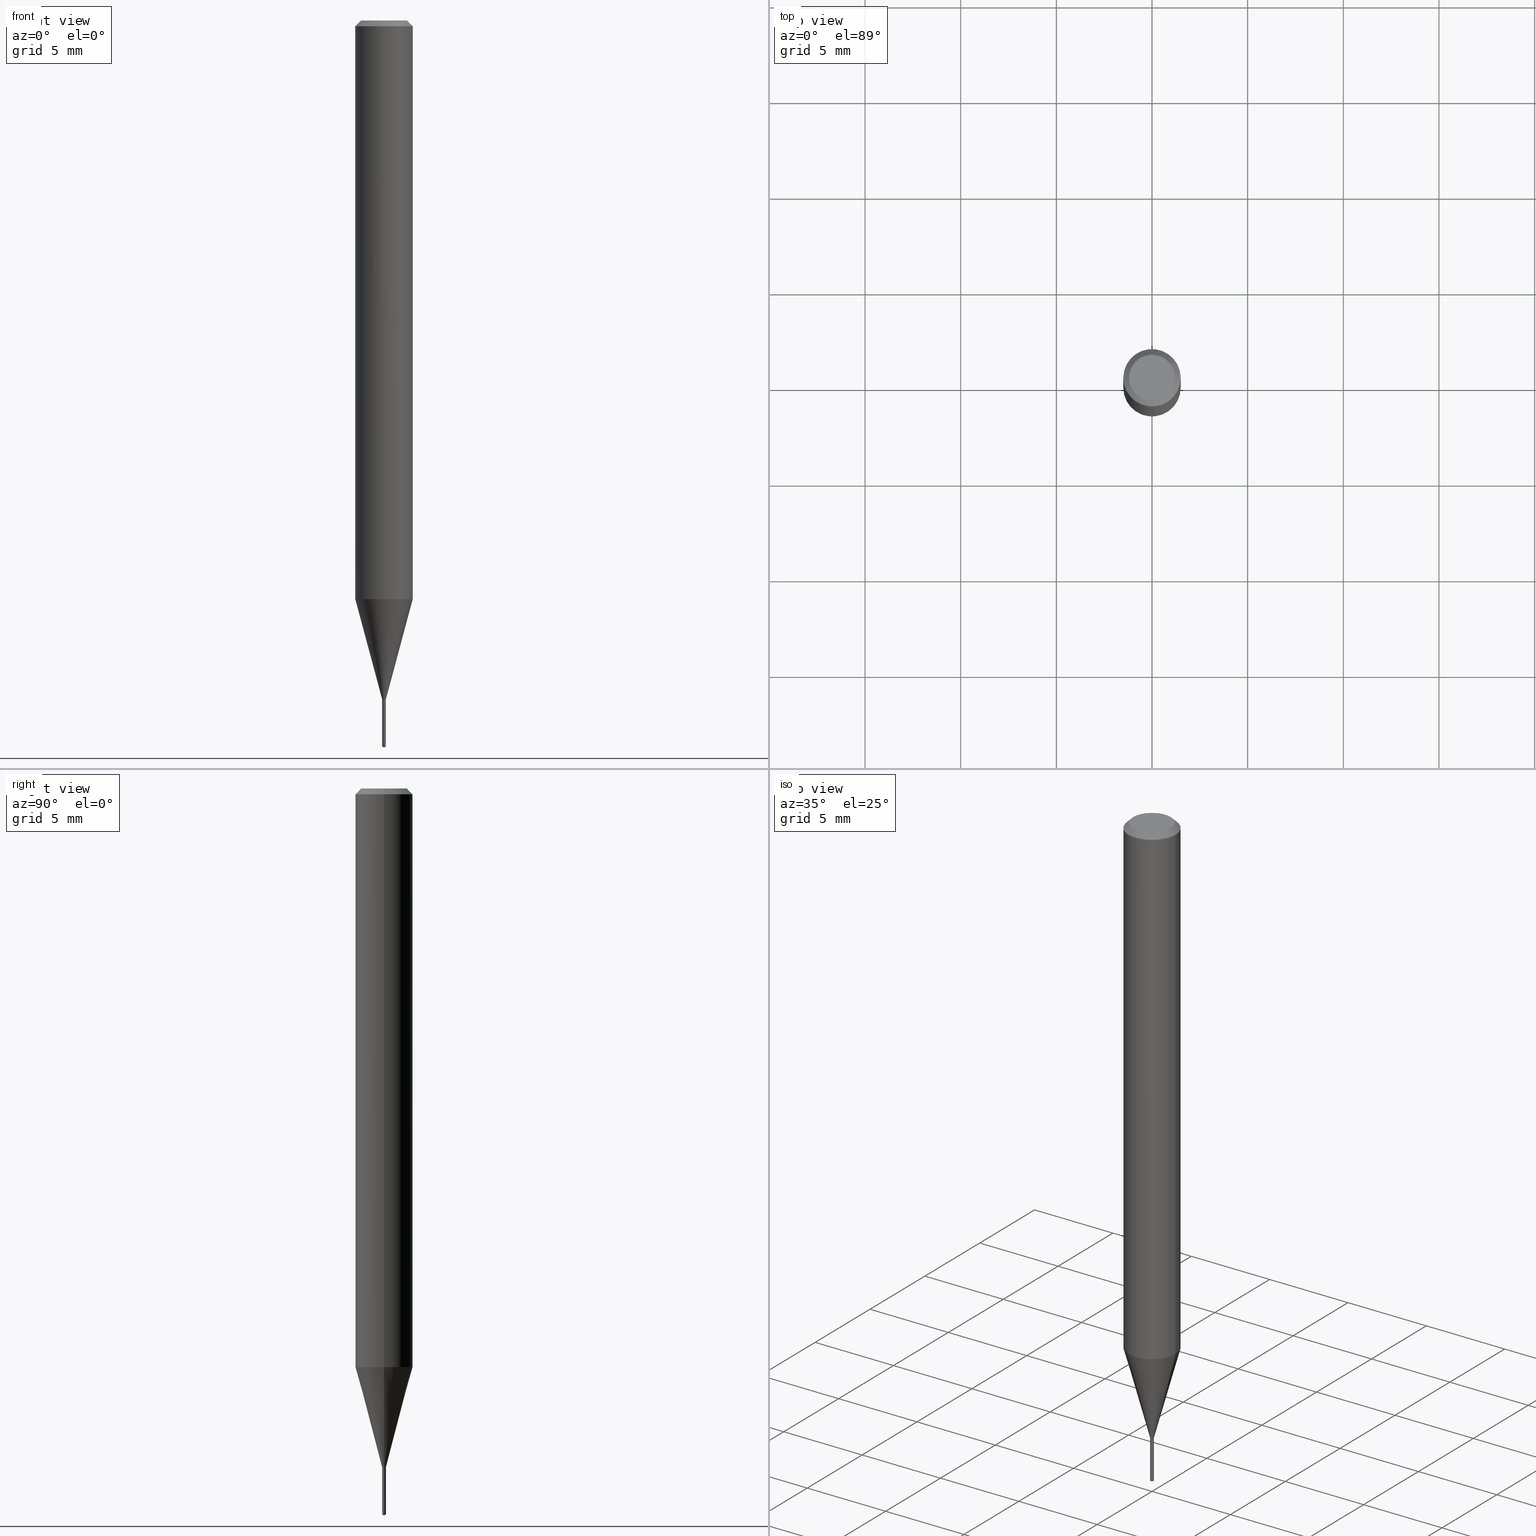
[diagram: canonical four-view strip — front | top / right | iso, engineering-drawing reading convention]
A machine part, canonical four-view strip (front | top / right | iso — engineering-drawing reading convention). The complete STEP part file that produces these views, byte-faithful:
ISO-10303-21;
HEADER;
FILE_DESCRIPTION (( 'STEP AP203' ),
    '1' );
FILE_NAME ('07739.STEP',
    '2024-04-24T02:01:28',
    ( '' ),
    ( '' ),
    'SwSTEP 2.0',
    'SolidWorks 2023',
    '' );
FILE_SCHEMA (( 'CONFIG_CONTROL_DESIGN' ));
ENDSEC;

DATA;
#1 = DIRECTION ( 'NONE',  ( -6.982962677686266711E-15, -1.000000000000000000, 0.000000000000000000 ) ) ;
#2 = CIRCLE ( 'NONE', #10, 0.05905000000000014404 ) ;
#3 = AXIS2_PLACEMENT_3D ( 'NONE', #90, #214, #63 ) ;
#4 = CC_DESIGN_DATE_AND_TIME_ASSIGNMENT ( #391, #46, ( #309 ) ) ;
#5 = CARTESIAN_POINT ( 'NONE',  ( -0.003950000000000000386, -4.847787251631928717E-15, -1.396500000000000075 ) ) ;
#6 = CALENDAR_DATE ( 2024, 23, 4 ) ;
#7 = CARTESIAN_POINT ( 'NONE',  ( 2.806643806256047571E-17, 0.003949999999994784072, -1.493726600554841077 ) ) ;
#8 = DIRECTION ( 'NONE',  ( 1.000000000000000000, -6.982962677686266711E-15, 0.000000000000000000 ) ) ;
#9 = EDGE_CURVE ( 'NONE', #184, #64, #351, .T. ) ;
#10 = AXIS2_PLACEMENT_3D ( 'NONE', #484, #146, #452 ) ;
#11 = CIRCLE ( 'NONE', #106, 0.003450000000000000809 ) ;
#12 = CARTESIAN_POINT ( 'NONE',  ( 0.000000000000000000, 0.000000000000000000, 0.000000000000000000 ) ) ;
#13 = DIRECTION ( 'NONE',  ( -2.445468806185136597E-29, 3.491481338843145583E-15, 1.000000000000000000 ) ) ;
#14 = ORIENTED_EDGE ( 'NONE', *, *, #101, .T. ) ;
#15 = CARTESIAN_POINT ( 'NONE',  ( 3.658605389342659504E-29, -5.223691858444399374E-15, -1.496099999999999985 ) ) ;
#16 = ORIENTED_EDGE ( 'NONE', *, *, #376, .T. ) ;
#17 = ADVANCED_FACE ( 'NONE', ( #224 ), #454, .F. ) ;
#18 = PLANE ( 'NONE',  #137 ) ;
#19 = VECTOR ( 'NONE', #59, 39.37007874015748143 ) ;
#20 = ORIENTED_EDGE ( 'NONE', *, *, #486, .T. ) ;
#21 = FACE_OUTER_BOUND ( 'NONE', #407, .T. ) ;
#22 = ORIENTED_EDGE ( 'NONE', *, *, #396, .T. ) ;
#23 = DIRECTION ( 'NONE',  ( 0.7071067811865453523, -7.319954787623248157E-15, -0.7071067811865496822 ) ) ;
#24 = EDGE_LOOP ( 'NONE', ( #209, #292, #150, #435 ) ) ;
#25 = DIRECTION ( 'NONE',  ( -6.982962677686266711E-15, -1.000000000000000000, 0.000000000000000000 ) ) ;
#26 = CONICAL_SURFACE ( 'NONE', #374, 65.52281426577083323, 1.029744258676670743 ) ;
#27 = ORIENTED_EDGE ( 'NONE', *, *, #131, .F. ) ;
#28 = CONICAL_SURFACE ( 'NONE', #45, 0.05904999999999999832, 0.7853981633974452814 ) ;
#29 = CARTESIAN_POINT ( 'NONE',  ( 0.000000000000000000, 0.000000000000000000, 0.000000000000000000 ) ) ;
#30 = LINE ( 'NONE', #411, #299 ) ;
#31 = PERSON_AND_ORGANIZATION ( #430, #147 ) ;
#32 = ORIENTED_EDGE ( 'NONE', *, *, #181, .T. ) ;
#33 = ADVANCED_FACE ( 'NONE', ( #385 ), #265, .T. ) ;
#34 = PRODUCT_DEFINITION ( 'UNKNOWN', '', #413, #71 ) ;
#35 = EDGE_LOOP ( 'NONE', ( #471, #217, #479, #213 ) ) ;
#36 = CONICAL_SURFACE ( 'NONE', #420, 0.003450000000000000809, 0.7853981633972759724 ) ;
#37 =( GEOMETRIC_REPRESENTATION_CONTEXT ( 3 ) GLOBAL_UNCERTAINTY_ASSIGNED_CONTEXT ( ( #329 ) ) GLOBAL_UNIT_ASSIGNED_CONTEXT ( ( #375, #296, #183 ) ) REPRESENTATION_CONTEXT ( 'NONE', 'WORKASPACE' ) );
#38 = CALENDAR_DATE ( 2024, 23, 4 ) ;
#39 = CARTESIAN_POINT ( 'NONE',  ( 3.418031750404965246E-29, -4.880043467301064347E-15, -1.397699999999999942 ) ) ;
#40 = EDGE_CURVE ( 'NONE', #371, #62, #144, .T. ) ;
#41 = PERSON_AND_ORGANIZATION_ROLE ( 'design_supplier' ) ;
#42 = LINE ( 'NONE', #148, #160 ) ;
#43 = APPLICATION_CONTEXT ( 'configuration controlled 3d designs of mechanical parts and assemblies' ) ;
#44 = DIRECTION ( 'NONE',  ( 1.000000000000000000, -6.982962677686266711E-15, 4.876185090822587894E-29 ) ) ;
#45 = AXIS2_PLACEMENT_3D ( 'NONE', #123, #399, #439 ) ;
#46 = DATE_TIME_ROLE ( 'classification_date' ) ;
#47 = DIRECTION ( 'NONE',  ( -2.445468806185136597E-29, 3.491481338843145583E-15, 1.000000000000000000 ) ) ;
#48 = ORIENTED_EDGE ( 'NONE', *, *, #438, .F. ) ;
#49 = DIRECTION ( 'NONE',  ( -6.982962677686266711E-15, -1.000000000000000000, 0.000000000000000000 ) ) ;
#50 = CARTESIAN_POINT ( 'NONE',  ( 3.418031750404965806E-29, -4.880043467301065136E-15, -1.397700000000000164 ) ) ;
#51 = VECTOR ( 'NONE', #221, 39.37007874015748143 ) ;
#52 = LOCAL_TIME ( 22, 1, 28.00000000000000000, #264 ) ;
#53 = CYLINDRICAL_SURFACE ( 'NONE', #153, 0.05905000000000006771 ) ;
#54 = EDGE_CURVE ( 'NONE', #336, #473, #30, .T. ) ;
#55 = CARTESIAN_POINT ( 'NONE',  ( 3.652857923996434429E-29, -5.215324111317117429E-15, -1.493726600554841077 ) ) ;
#56 = ORIENTED_EDGE ( 'NONE', *, *, #219, .T. ) ;
#57 = CARTESIAN_POINT ( 'NONE',  ( 3.418031750404965246E-29, -4.880043467301064347E-15, -1.397699999999999942 ) ) ;
#58 = EDGE_LOOP ( 'NONE', ( #443, #177 ) ) ;
#59 = DIRECTION ( 'NONE',  ( -0.7071067811865453523, 2.468850131082234184E-15, -0.7071067811865496822 ) ) ;
#60 = AXIS2_PLACEMENT_3D ( 'NONE', #12, #13, #353 ) ;
#61 = LOCAL_TIME ( 22, 1, 28.00000000000000000, #151 ) ;
#62 = VERTEX_POINT ( 'NONE', #270 ) ;
#63 = DIRECTION ( 'NONE',  ( 1.000000000000000000, -6.982962677686246200E-15, 0.000000000000000000 ) ) ;
#64 = VERTEX_POINT ( 'NONE', #76 ) ;
#65 = CARTESIAN_POINT ( 'NONE',  ( 0.000000000000000000, 0.000000000000000000, 0.000000000000000000 ) ) ;
#66 = ORIENTED_EDGE ( 'NONE', *, *, #271, .T. ) ;
#67 = DATE_AND_TIME ( #410, #277 ) ;
#68 = CIRCLE ( 'NONE', #83, 0.04724000000000000421 ) ;
#69 = VERTEX_POINT ( 'NONE', #350 ) ;
#70 = VECTOR ( 'NONE', #335, 39.37007874015748143 ) ;
#71 = DESIGN_CONTEXT ( 'detailed design', #167, 'design' ) ;
#72 = CARTESIAN_POINT ( 'NONE',  ( -0.003950000000000000386, 2.806643806252396008E-17, -1.942979360650688056E-31 ) ) ;
#73 = DIRECTION ( 'NONE',  ( -6.982962677686266711E-15, -1.000000000000000000, 0.000000000000000000 ) ) ;
#74 = ORIENTED_EDGE ( 'NONE', *, *, #486, .F. ) ;
#75 = APPROVAL_DATE_TIME ( #487, #320 ) ;
#76 = CARTESIAN_POINT ( 'NONE',  ( -0.003950000000000000386, -4.849009270100523375E-15, -1.396500000000000075 ) ) ;
#77 = AXIS2_PLACEMENT_3D ( 'NONE', #370, #206, #99 ) ;
#78 = APPROVAL_ROLE ( '' ) ;
#79 = CARTESIAN_POINT ( 'NONE',  ( 3.416809016001873005E-29, -4.878297726631642843E-15, -1.397199999999999998 ) ) ;
#80 = EDGE_CURVE ( 'NONE', #184, #336, #96, .T. ) ;
#81 = CARTESIAN_POINT ( 'NONE',  ( 0.003450000000000000809, -4.904134688539083463E-15, -1.397700000000000164 ) ) ;
#82 = DIRECTION ( 'NONE',  ( -2.445468806185136597E-29, 3.491481338843145583E-15, 1.000000000000000000 ) ) ;
#83 = AXIS2_PLACEMENT_3D ( 'NONE', #238, #82, #44 ) ;
#84 = AXIS2_PLACEMENT_3D ( 'NONE', #91, #284, #365 ) ;
#85 = DIRECTION ( 'NONE',  ( -2.445468806185136597E-29, 3.491481338843145583E-15, 1.000000000000000000 ) ) ;
#86 = EDGE_CURVE ( 'NONE', #175, #336, #42, .T. ) ;
#87 = DIRECTION ( 'NONE',  ( -1.000000000000000000, 6.982962677686265922E-15, -4.876176775795935793E-29 ) ) ;
#88 = DIRECTION ( 'NONE',  ( 1.000000000000000000, -6.982962677686266711E-15, 4.876176775795936353E-29 ) ) ;
#89 = LOCAL_TIME ( 22, 1, 28.00000000000000000, #200 ) ;
#90 = CARTESIAN_POINT ( 'NONE',  ( 3.415097187837543195E-29, -4.875853689694452738E-15, -1.396500000000000075 ) ) ;
#91 = CARTESIAN_POINT ( 'NONE',  ( -9.261804570917240977E-28, 1.322385639134920803E-13, 37.87397874015748300 ) ) ;
#92 = ORIENTED_EDGE ( 'NONE', *, *, #225, .F. ) ;
#93 = CARTESIAN_POINT ( 'NONE',  ( 3.658605389342659504E-29, -5.223691858444398585E-15, -1.496099999999999985 ) ) ;
#94 = ORIENTED_EDGE ( 'NONE', *, *, #334, .T. ) ;
#95 = DIRECTION ( 'NONE',  ( -2.445468806185136597E-29, 3.491481338843145583E-15, 1.000000000000000000 ) ) ;
#96 = CIRCLE ( 'NONE', #276, 0.003950000000000000386 ) ;
#97 = CIRCLE ( 'NONE', #220, 0.003950000000000000386 ) ;
#98 = ORIENTED_EDGE ( 'NONE', *, *, #181, .F. ) ;
#99 = DIRECTION ( 'NONE',  ( 1.000000000000000000, -6.982962677686272233E-15, 0.000000000000000000 ) ) ;
#100 = VERTEX_POINT ( 'NONE', #418 ) ;
#101 = EDGE_CURVE ( 'NONE', #469, #62, #227, .T. ) ;
#102 = DIRECTION ( 'NONE',  ( 0.000000000000000000, 0.000000000000000000, 1.000000000000000000 ) ) ;
#103 = DIRECTION ( 'NONE',  ( -6.982962677686266711E-15, -1.000000000000000000, 0.000000000000000000 ) ) ;
#104 = CARTESIAN_POINT ( 'NONE',  ( 3.418031750404965246E-29, -4.880043467301064347E-15, -1.397699999999999942 ) ) ;
#105 = FACE_OUTER_BOUND ( 'NONE', #129, .T. ) ;
#106 = AXIS2_PLACEMENT_3D ( 'NONE', #483, #481, #139 ) ;
#107 = CC_DESIGN_PERSON_AND_ORGANIZATION_ASSIGNMENT ( #235, #461, ( #309 ) ) ;
#108 = PERSON_AND_ORGANIZATION ( #430, #147 ) ;
#109 = ORIENTED_EDGE ( 'NONE', *, *, #54, .T. ) ;
#110 = EDGE_LOOP ( 'NONE', ( #48, #250 ) ) ;
#111 = EDGE_LOOP ( 'NONE', ( #258, #437, #109, #366 ) ) ;
#112 = AXIS2_PLACEMENT_3D ( 'NONE', #104, #414, #73 ) ;
#113 = DIRECTION ( 'NONE',  ( 2.445468806185136597E-29, -3.491481338843145583E-15, -1.000000000000000000 ) ) ;
#114 = CARTESIAN_POINT ( 'NONE',  ( 3.415097187837543195E-29, -4.875853689694452738E-15, -1.396500000000000075 ) ) ;
#115 = CARTESIAN_POINT ( 'NONE',  ( 2.888098660104664204E-31, -4.123439461173780263E-17, -0.01181000000000007218 ) ) ;
#116 = ORIENTED_EDGE ( 'NONE', *, *, #158, .T. ) ;
#117 = CONICAL_SURFACE ( 'NONE', #403, 0.05904999999999999832, 0.7853981633974452814 ) ;
#118 = PERSON_AND_ORGANIZATION ( #430, #147 ) ;
#119 = EDGE_CURVE ( 'NONE', #140, #175, #412, .T. ) ;
#120 = FACE_OUTER_BOUND ( 'NONE', #172, .T. ) ;
#121 = DIMENSIONAL_EXPONENTS ( 1.000000000000000000, 0.000000000000000000, 0.000000000000000000, 0.000000000000000000, 0.000000000000000000, 0.000000000000000000, 0.000000000000000000 ) ;
#122 = DIRECTION ( 'NONE',  ( -6.982962677686265922E-15, -1.000000000000000000, 3.468864327941467208E-15 ) ) ;
#123 = CARTESIAN_POINT ( 'NONE',  ( 2.888098660104664204E-31, -4.123439461173780263E-17, -0.01181000000000007218 ) ) ;
#124 = AXIS2_PLACEMENT_3D ( 'NONE', #39, #187, #1 ) ;
#125 = AXIS2_PLACEMENT_3D ( 'NONE', #65, #324, #465 ) ;
#126 = CARTESIAN_POINT ( 'NONE',  ( 0.003950000000000000386, -4.905880429208504178E-15, -1.397199999999999998 ) ) ;
#127 = ORIENTED_EDGE ( 'NONE', *, *, #334, .F. ) ;
#128 = LINE ( 'NONE', #367, #328 ) ;
#129 = EDGE_LOOP ( 'NONE', ( #245, #20, #440, #295 ) ) ;
#130 = ADVANCED_FACE ( 'NONE', ( #105 ), #36, .T. ) ;
#131 = EDGE_CURVE ( 'NONE', #133, #456, #2, .T. ) ;
#132 = LINE ( 'NONE', #249, #161 ) ;
#133 = VERTEX_POINT ( 'NONE', #279 ) ;
#134 = CLOSED_SHELL ( 'NONE', ( #480, #280, #166, #33, #316 ) ) ;
#135 = DIRECTION ( 'NONE',  ( -2.445468806185136597E-29, 3.491481338843145583E-15, 1.000000000000000000 ) ) ;
#136 = AXIS2_PLACEMENT_3D ( 'NONE', #297, #340, #450 ) ;
#137 = AXIS2_PLACEMENT_3D ( 'NONE', #254, #406, #176 ) ;
#138 = ORIENTED_EDGE ( 'NONE', *, *, #40, .F. ) ;
#139 = DIRECTION ( 'NONE',  ( 1.000000000000000000, -6.982962677686373207E-15, 0.000000000000000000 ) ) ;
#140 = VERTEX_POINT ( 'NONE', #317 ) ;
#141 = ADVANCED_FACE ( 'NONE', ( #431 ), #274, .T. ) ;
#142 = LENGTH_MEASURE_WITH_UNIT ( LENGTH_MEASURE( 0.02539999999999999897 ), #222 );
#143 = CC_DESIGN_PERSON_AND_ORGANIZATION_ASSIGNMENT ( #321, #386, ( #413 ) ) ;
#144 = LINE ( 'NONE', #490, #51 ) ;
#145 = AXIS2_PLACEMENT_3D ( 'NONE', #275, #85, #458 ) ;
#146 = DIRECTION ( 'NONE',  ( -2.445468806185136597E-29, 3.491481338843145583E-15, 1.000000000000000000 ) ) ;
#147 = ORGANIZATION ( 'UNSPECIFIED', 'UNSPECIFIED', '' ) ;
#148 = CARTESIAN_POINT ( 'NONE',  ( 0.003450000000000000809, -4.904134688539083463E-15, -1.397700000000000164 ) ) ;
#149 = DIRECTION ( 'NONE',  ( -0.7071067811864256702, 7.493145998869913976E-15, 0.7071067811866693642 ) ) ;
#150 = ORIENTED_EDGE ( 'NONE', *, *, #40, .T. ) ;
#151 = COORDINATED_UNIVERSAL_TIME_OFFSET ( 5, 0, .BEHIND. ) ;
#152 = DIRECTION ( 'NONE',  ( -2.445428373332437434E-29, 3.491539240989505774E-15, 1.000000000000000000 ) ) ;
#153 = AXIS2_PLACEMENT_3D ( 'NONE', #459, #240, #165 ) ;
#154 = DIRECTION ( 'NONE',  ( -0.2588190451025213501, 5.211531920934551042E-15, 0.9659258262890682012 ) ) ;
#155 = ADVANCED_FACE ( 'NONE', ( #233 ), #345, .T. ) ;
#156 = DATE_AND_TIME ( #6, #89 ) ;
#157 = DIRECTION ( 'NONE',  ( -2.445428373332437434E-29, 3.491539240989505380E-15, 1.000000000000000000 ) ) ;
#158 = EDGE_CURVE ( 'NONE', #69, #364, #202, .T. ) ;
#159 = LINE ( 'NONE', #463, #282 ) ;
#160 = VECTOR ( 'NONE', #348, 39.37007874015748143 ) ;
#161 = VECTOR ( 'NONE', #23, 39.37007874015748143 ) ;
#162 = DIRECTION ( 'NONE',  ( 1.000000000000000000, -6.982962677686373207E-15, 0.000000000000000000 ) ) ;
#163 = EDGE_LOOP ( 'NONE', ( #32, #314, #127, #138 ) ) ;
#164 = PRODUCT_RELATED_PRODUCT_CATEGORY ( 'detail', '', ( #369 ) ) ;
#165 = DIRECTION ( 'NONE',  ( 1.000000000000000000, -6.982962677686266711E-15, 4.876176775795936353E-29 ) ) ;
#166 = ADVANCED_FACE ( 'NONE', ( #356 ), #26, .T. ) ;
#167 = APPLICATION_CONTEXT ( 'configuration controlled 3d designs of mechanical parts and assemblies' ) ;
#168 = DIRECTION ( 'NONE',  ( -2.445428373332437434E-29, 3.491539240989505774E-15, 1.000000000000000000 ) ) ;
#169 = ORIENTED_EDGE ( 'NONE', *, *, #273, .F. ) ;
#170 = AXIS2_PLACEMENT_3D ( 'NONE', #50, #322, #162 ) ;
#171 = DIRECTION ( 'NONE',  ( 0.2588190451025213501, 1.565188264969621968E-15, 0.9659258262890682012 ) ) ;
#172 = EDGE_LOOP ( 'NONE', ( #92, #306, #247, #169 ) ) ;
#173 = ADVANCED_FACE ( 'NONE', ( #194 ), #53, .T. ) ;
#174 = FACE_OUTER_BOUND ( 'NONE', #327, .T. ) ;
#175 = VERTEX_POINT ( 'NONE', #81 ) ;
#176 = DIRECTION ( 'NONE',  ( 6.982962677686265922E-15, 1.000000000000000000, -3.491539240989505380E-15 ) ) ;
#177 = ORIENTED_EDGE ( 'NONE', *, *, #225, .T. ) ;
#178 = PERSON_AND_ORGANIZATION_ROLE ( 'creator' ) ;
#179 = CIRCLE ( 'NONE', #445, 0.003950000000000000386 ) ;
#180 = ORIENTED_EDGE ( 'NONE', *, *, #80, .F. ) ;
#181 = EDGE_CURVE ( 'NONE', #371, #198, #237, .T. ) ;
#182 = DIRECTION ( 'NONE',  ( 1.000000000000000000, -6.982962677686246200E-15, 0.000000000000000000 ) ) ;
#183 =( NAMED_UNIT ( * ) SI_UNIT ( $, .STERADIAN. ) SOLID_ANGLE_UNIT ( ) );
#184 = VERTEX_POINT ( 'NONE', #428 ) ;
#185 = APPLICATION_PROTOCOL_DEFINITION ( 'international standard', 'config_control_design', 1994, #167 ) ;
#186 = VECTOR ( 'NONE', #157, 39.37007874015748143 ) ;
#187 = DIRECTION ( 'NONE',  ( -2.445428373332437434E-29, 3.491539240989505774E-15, 1.000000000000000000 ) ) ;
#188 = CIRCLE ( 'NONE', #229, 0.04724000000000000421 ) ;
#189 = DATE_AND_TIME ( #38, #269 ) ;
#190 = ORIENTED_EDGE ( 'NONE', *, *, #419, .T. ) ;
#191 = EDGE_CURVE ( 'NONE', #364, #69, #433, .T. ) ;
#192 = ORIENTED_EDGE ( 'NONE', *, *, #405, .T. ) ;
#193 = PERSON_AND_ORGANIZATION ( #430, #147 ) ;
#194 = FACE_OUTER_BOUND ( 'NONE', #35, .T. ) ;
#195 = APPROVAL ( #489, 'UNSPECIFIED' ) ;
#196 = CALENDAR_DATE ( 2024, 23, 4 ) ;
#197 = DIRECTION ( 'NONE',  ( -1.000000000000000000, 6.982962677686266711E-15, 0.000000000000000000 ) ) ;
#198 = VERTEX_POINT ( 'NONE', #7 ) ;
#199 = FACE_OUTER_BOUND ( 'NONE', #58, .T. ) ;
#200 = COORDINATED_UNIVERSAL_TIME_OFFSET ( 5, 0, .BEHIND. ) ;
#201 = DIRECTION ( 'NONE',  ( -2.445468806185136597E-29, 3.491481338843145583E-15, 1.000000000000000000 ) ) ;
#202 = CIRCLE ( 'NONE', #475, 0.05904999999999999832 ) ;
#203 = CONICAL_SURFACE ( 'NONE', #3, 0.003950000000000000386, 0.2617993877991500740 ) ;
#204 = ADVANCED_FACE ( 'NONE', ( #199 ), #359, .F. ) ;
#205 = CYLINDRICAL_SURFACE ( 'NONE', #60, 0.003950000000000000386 ) ;
#206 = DIRECTION ( 'NONE',  ( -2.445468806185136597E-29, 3.491481338843145583E-15, 1.000000000000000000 ) ) ;
#207 = EDGE_LOOP ( 'NONE', ( #94, #14 ) ) ;
#208 = LINE ( 'NONE', #287, #283 ) ;
#209 = ORIENTED_EDGE ( 'NONE', *, *, #257, .F. ) ;
#210 = AXIS2_PLACEMENT_3D ( 'NONE', #242, #394, #87 ) ;
#211 = CC_DESIGN_APPROVAL ( #320, ( #34 ) ) ;
#212 = DIRECTION ( 'NONE',  ( -2.445468806185136597E-29, 3.491481338843145583E-15, 1.000000000000000000 ) ) ;
#213 = ORIENTED_EDGE ( 'NONE', *, *, #419, .F. ) ;
#214 = DIRECTION ( 'NONE',  ( -2.445468806185136597E-29, 3.491481338843145583E-15, 1.000000000000000000 ) ) ;
#215 = ORIENTED_EDGE ( 'NONE', *, *, #293, .F. ) ;
#216 = DIRECTION ( 'NONE',  ( -2.445428373332437434E-29, 3.491539240989505774E-15, 1.000000000000000000 ) ) ;
#217 = ORIENTED_EDGE ( 'NONE', *, *, #325, .T. ) ;
#218 = CC_DESIGN_DATE_AND_TIME_ASSIGNMENT ( #189, #349, ( #34 ) ) ;
#219 = EDGE_CURVE ( 'NONE', #285, #198, #159, .T. ) ;
#220 = AXIS2_PLACEMENT_3D ( 'NONE', #55, #216, #436 ) ;
#221 = DIRECTION ( 'NONE',  ( -2.445428373332437434E-29, 3.491539240989505380E-15, 1.000000000000000000 ) ) ;
#222 =( LENGTH_UNIT ( ) NAMED_UNIT ( * ) SI_UNIT ( $, .METRE. ) );
#223 = ORIENTED_EDGE ( 'NONE', *, *, #361, .F. ) ;
#224 = FACE_OUTER_BOUND ( 'NONE', #110, .T. ) ;
#225 = EDGE_CURVE ( 'NONE', #255, #100, #68, .T. ) ;
#226 = COORDINATED_UNIVERSAL_TIME_OFFSET ( 5, 0, .BEHIND. ) ;
#227 = CIRCLE ( 'NONE', #444, 0.003950000000000000386 ) ;
#228 = ORIENTED_EDGE ( 'NONE', *, *, #376, .F. ) ;
#229 = AXIS2_PLACEMENT_3D ( 'NONE', #401, #212, #474 ) ;
#230 = APPROVAL_DATE_TIME ( #67, #195 ) ;
#231 = DIRECTION ( 'NONE',  ( -2.445468806185136597E-29, 3.491481338843145583E-15, 1.000000000000000000 ) ) ;
#232 = ADVANCED_FACE ( 'NONE', ( #362 ), #205, .T. ) ;
#233 = FACE_OUTER_BOUND ( 'NONE', #302, .T. ) ;
#234 = CC_DESIGN_PERSON_AND_ORGANIZATION_ASSIGNMENT ( #31, #448, ( #369 ) ) ;
#235 = PERSON_AND_ORGANIZATION ( #430, #147 ) ;
#236 = CARTESIAN_POINT ( 'NONE',  ( -0.05904999999999999832, 3.711095515056362547E-16, -0.01181000000000007218 ) ) ;
#237 = CIRCLE ( 'NONE', #308, 0.003950000000000000386 ) ;
#238 = CARTESIAN_POINT ( 'NONE',  ( 8.265746106709734507E-48, -1.180129479067563789E-33, -3.380025165646692144E-19 ) ) ;
#239 = SECURITY_CLASSIFICATION_LEVEL ( 'unclassified' ) ;
#240 = DIRECTION ( 'NONE',  ( -2.445468806185136597E-29, 3.491481338843145583E-15, 1.000000000000000000 ) ) ;
#241 = ADVANCED_FACE ( 'NONE', ( #120 ), #117, .T. ) ;
#242 = CARTESIAN_POINT ( 'NONE',  ( 4.132873053354867254E-48, -5.900647395337818946E-34, -1.690012582823346072E-19 ) ) ;
#243 = CONICAL_SURFACE ( 'NONE', #404, 0.003950000000000000386, 0.2617993877991500740 ) ;
#244 = FACE_OUTER_BOUND ( 'NONE', #288, .T. ) ;
#245 = ORIENTED_EDGE ( 'NONE', *, *, #438, .T. ) ;
#246 = DIRECTION ( 'NONE',  ( -2.445468806185136597E-29, 3.491481338843145583E-15, 1.000000000000000000 ) ) ;
#247 = ORIENTED_EDGE ( 'NONE', *, *, #191, .T. ) ;
#248 = EDGE_CURVE ( 'NONE', #64, #133, #272, .T. ) ;
#249 = CARTESIAN_POINT ( 'NONE',  ( 0.05904999999999999832, -4.463468013801466955E-16, -0.01181000000000007218 ) ) ;
#250 = ORIENTED_EDGE ( 'NONE', *, *, #119, .F. ) ;
#251 = ADVANCED_BREP_SHAPE_REPRESENTATION ( '07739', ( #315, #323, #352 ), #37 ) ;
#252 = CIRCLE ( 'NONE', #381, 0.003950000000000000386 ) ;
#253 = AXIS2_PLACEMENT_3D ( 'NONE', #442, #95, #281 ) ;
#254 = CARTESIAN_POINT ( 'NONE',  ( 3.418031750404965246E-29, -4.880043467301064347E-15, -1.397699999999999942 ) ) ;
#255 = VERTEX_POINT ( 'NONE', #312 ) ;
#256 = FACE_OUTER_BOUND ( 'NONE', #398, .T. ) ;
#257 = EDGE_CURVE ( 'NONE', #198, #469, #429, .T. ) ;
#258 = ORIENTED_EDGE ( 'NONE', *, *, #9, .F. ) ;
#259 = CALENDAR_DATE ( 2024, 23, 4 ) ;
#260 = DIRECTION ( 'NONE',  ( -2.438088387897960049E-29, 3.491481338843145188E-15, 1.000000000000000000 ) ) ;
#261 = CYLINDRICAL_SURFACE ( 'NONE', #112, 0.003950000000000000386 ) ;
#262 = CIRCLE ( 'NONE', #77, 0.05905000000000014404 ) ;
#263 = DIRECTION ( 'NONE',  ( -2.445468806185136597E-29, 3.491481338843145583E-15, 1.000000000000000000 ) ) ;
#264 = COORDINATED_UNIVERSAL_TIME_OFFSET ( 5, 0, .BEHIND. ) ;
#265 = CYLINDRICAL_SURFACE ( 'NONE', #124, 0.003950000000000000386 ) ;
#266 = DIRECTION ( 'NONE',  ( -2.445468806185136877E-29, 3.491481338843145188E-15, 1.000000000000000000 ) ) ;
#267 = DIRECTION ( 'NONE',  ( 1.000000000000000000, 0.000000000000000000, 0.000000000000000000 ) ) ;
#268 = CLOSED_SHELL ( 'NONE', ( #130, #241, #173, #286, #422, #232, #341, #141, #307, #204, #17, #155 ) ) ;
#269 = LOCAL_TIME ( 22, 1, 28.00000000000000000, #226 ) ;
#270 = CARTESIAN_POINT ( 'NONE',  ( -2.758270257682657184E-17, -0.003950000000004880163, -1.397699999999999942 ) ) ;
#271 = EDGE_CURVE ( 'NONE', #64, #473, #252, .T. ) ;
#272 = LINE ( 'NONE', #5, #485 ) ;
#273 = EDGE_CURVE ( 'NONE', #100, #69, #393, .T. ) ;
#274 = CYLINDRICAL_SURFACE ( 'NONE', #467, 0.05905000000000006771 ) ;
#275 = CARTESIAN_POINT ( 'NONE',  ( 2.888098660104664204E-31, -4.123439461173780263E-17, -0.01181000000000007218 ) ) ;
#276 = AXIS2_PLACEMENT_3D ( 'NONE', #79, #231, #182 ) ;
#277 = LOCAL_TIME ( 22, 1, 28.00000000000000000, #455 ) ;
#278 = CARTESIAN_POINT ( 'NONE',  ( 2.888098660104664204E-31, -4.123439461173780263E-17, -0.01181000000000007218 ) ) ;
#279 = CARTESIAN_POINT ( 'NONE',  ( -0.05905000000000014404, -3.738303949389820923E-15, -1.190864000502954712 ) ) ;
#280 = ADVANCED_FACE ( 'NONE', ( #244 ), #301, .T. ) ;
#281 = DIRECTION ( 'NONE',  ( 1.000000000000000000, -6.982962677686246200E-15, 0.000000000000000000 ) ) ;
#282 = VECTOR ( 'NONE', #387, 39.37007874015748143 ) ;
#283 = VECTOR ( 'NONE', #171, 39.37007874015747433 ) ;
#284 = DIRECTION ( 'NONE',  ( -2.445428373332437434E-29, 3.491539240989505774E-15, 1.000000000000000000 ) ) ;
#285 = VERTEX_POINT ( 'NONE', #15 ) ;
#286 = ADVANCED_FACE ( 'NONE', ( #397 ), #203, .T. ) ;
#287 = CARTESIAN_POINT ( 'NONE',  ( 0.003950000000000000386, -4.903436392271313284E-15, -1.396500000000000075 ) ) ;
#288 = EDGE_LOOP ( 'NONE', ( #228, #56, #98 ) ) ;
#289 = DIRECTION ( 'NONE',  ( 1.000000000000000000, -6.982962677686246200E-15, 0.000000000000000000 ) ) ;
#290 = ORIENTED_EDGE ( 'NONE', *, *, #131, .T. ) ;
#291 = LINE ( 'NONE', #446, #427 ) ;
#292 = ORIENTED_EDGE ( 'NONE', *, *, #293, .T. ) ;
#293 = EDGE_CURVE ( 'NONE', #198, #371, #97, .T. ) ;
#294 = MECHANICAL_CONTEXT ( 'NONE', #43, 'mechanical' ) ;
#295 = ORIENTED_EDGE ( 'NONE', *, *, #86, .F. ) ;
#296 =( NAMED_UNIT ( * ) PLANE_ANGLE_UNIT ( ) SI_UNIT ( $, .RADIAN. ) );
#297 = CARTESIAN_POINT ( 'NONE',  ( 3.418031750404965806E-29, -4.880043467301065136E-15, -1.397700000000000164 ) ) ;
#298 = EDGE_CURVE ( 'NONE', #255, #364, #132, .T. ) ;
#299 = VECTOR ( 'NONE', #266, 39.37007874015748143 ) ;
#300 = CARTESIAN_POINT ( 'NONE',  ( 0.05905000000000014404, -4.570223380973535336E-15, -1.190864000502954712 ) ) ;
#301 = CONICAL_SURFACE ( 'NONE', #84, 65.52281426577083323, 1.029744258676670743 ) ;
#302 = EDGE_LOOP ( 'NONE', ( #74, #377, #333, #180 ) ) ;
#303 = FACE_OUTER_BOUND ( 'NONE', #163, .T. ) ;
#304 = EDGE_LOOP ( 'NONE', ( #338, #16, #215 ) ) ;
#305 = PERSON_AND_ORGANIZATION ( #430, #147 ) ;
#306 = ORIENTED_EDGE ( 'NONE', *, *, #298, .T. ) ;
#307 = ADVANCED_FACE ( 'NONE', ( #21 ), #28, .T. ) ;
#308 = AXIS2_PLACEMENT_3D ( 'NONE', #464, #425, #49 ) ;
#309 = SECURITY_CLASSIFICATION ( '', '', #239 ) ;
#310 = CARTESIAN_POINT ( 'NONE',  ( 3.418031750404965246E-29, -4.880043467301064347E-15, -1.397699999999999942 ) ) ;
#311 = EDGE_CURVE ( 'NONE', #456, #133, #262, .T. ) ;
#312 = CARTESIAN_POINT ( 'NONE',  ( 0.04724000000000000421, -3.852183633974369345E-16, -3.380025165621689721E-19 ) ) ;
#313 = DIRECTION ( 'NONE',  ( -2.445468806185136597E-29, 3.491481338843145583E-15, 1.000000000000000000 ) ) ;
#314 = ORIENTED_EDGE ( 'NONE', *, *, #257, .T. ) ;
#315 = MANIFOLD_SOLID_BREP ( 'Body-Move/Copy2[1]', #134 ) ;
#316 = ADVANCED_FACE ( 'NONE', ( #466 ), #18, .F. ) ;
#317 = CARTESIAN_POINT ( 'NONE',  ( -0.003450000000000000809, -4.852880515743230812E-15, -1.397700000000000164 ) ) ;
#318 = VECTOR ( 'NONE', #382, 39.37007874015748143 ) ;
#319 = APPROVAL_PERSON_ORGANIZATION ( #193, #426, #354 ) ;
#320 = APPROVAL ( #342, 'UNSPECIFIED' ) ;
#321 = PERSON_AND_ORGANIZATION ( #430, #147 ) ;
#322 = DIRECTION ( 'NONE',  ( -2.445468806185136597E-29, 3.491481338843145583E-15, 1.000000000000000000 ) ) ;
#323 = MANIFOLD_SOLID_BREP ( 'Body-Move/Copy2[2]', #268 ) ;
#324 = DIRECTION ( 'NONE',  ( -2.445468806185136597E-29, 3.491481338843145583E-15, 1.000000000000000000 ) ) ;
#325 = EDGE_CURVE ( 'NONE', #133, #69, #128, .T. ) ;
#326 = DIRECTION ( 'NONE',  ( -2.445468806185136877E-29, 3.491481338843145188E-15, 1.000000000000000000 ) ) ;
#327 = EDGE_LOOP ( 'NONE', ( #449, #66, #447, #27 ) ) ;
#328 = VECTOR ( 'NONE', #326, 39.37007874015748143 ) ;
#329 = UNCERTAINTY_MEASURE_WITH_UNIT (LENGTH_MEASURE( 1.000000000000000082E-05 ), #375, 'distance_accuracy_value', 'NONE');
#330 = CARTESIAN_POINT ( 'NONE',  ( -2.758270257682422375E-17, -0.003950000000005215832, -1.493726600554841077 ) ) ;
#331 = EDGE_LOOP ( 'NONE', ( #192, #373, #421, #223 ) ) ;
#332 = CARTESIAN_POINT ( 'NONE',  ( 3.416809016001873005E-29, -4.878297726631642843E-15, -1.397199999999999998 ) ) ;
#333 = ORIENTED_EDGE ( 'NONE', *, *, #86, .T. ) ;
#334 = EDGE_CURVE ( 'NONE', #62, #469, #462, .T. ) ;
#335 = DIRECTION ( 'NONE',  ( -5.985567269336001233E-15, -0.8571673007021188839, 0.5150380749100432753 ) ) ;
#336 = VERTEX_POINT ( 'NONE', #126 ) ;
#337 = AXIS2_PLACEMENT_3D ( 'NONE', #57, #168, #25 ) ;
#338 = ORIENTED_EDGE ( 'NONE', *, *, #219, .F. ) ;
#339 = PERSON_AND_ORGANIZATION ( #430, #147 ) ;
#340 = DIRECTION ( 'NONE',  ( -2.445468806185136597E-29, 3.491481338843145583E-15, 1.000000000000000000 ) ) ;
#341 = ADVANCED_FACE ( 'NONE', ( #174 ), #243, .T. ) ;
#342 = APPROVAL_STATUS ( 'not_yet_approved' ) ;
#343 = CARTESIAN_POINT ( 'NONE',  ( 3.418031750404965806E-29, -4.880043467301065136E-15, -1.397700000000000164 ) ) ;
#344 = PRODUCT_DEFINITION_SHAPE ( 'NONE', 'NONE',  #34 ) ;
#345 = CONICAL_SURFACE ( 'NONE', #170, 0.003450000000000000809, 0.7853981633972759724 ) ;
#346 = APPROVAL_ROLE ( '' ) ;
#347 = CIRCLE ( 'NONE', #253, 0.003950000000000000386 ) ;
#348 = DIRECTION ( 'NONE',  ( 0.7071067811864256702, -2.468850131080980684E-15, 0.7071067811866693642 ) ) ;
#349 = DATE_TIME_ROLE ( 'creation_date' ) ;
#350 = CARTESIAN_POINT ( 'NONE',  ( -0.05904999999999999832, -1.679981429267608988E-15, -0.01181000000000007218 ) ) ;
#351 = LINE ( 'NONE', #72, #318 ) ;
#352 = AXIS2_PLACEMENT_3D ( 'NONE', #29, #102, #267 ) ;
#353 = DIRECTION ( 'NONE',  ( 1.000000000000000000, -6.982962677686267499E-15, 4.876176775795935793E-29 ) ) ;
#354 = APPROVAL_ROLE ( '' ) ;
#355 = CARTESIAN_POINT ( 'NONE',  ( -9.261804570917240977E-28, 1.322385639134920803E-13, 37.87397874015748300 ) ) ;
#356 = FACE_OUTER_BOUND ( 'NONE', #304, .T. ) ;
#357 = CC_DESIGN_PERSON_AND_ORGANIZATION_ASSIGNMENT ( #339, #178, ( #34 ) ) ;
#358 = APPROVAL_DATE_TIME ( #156, #426 ) ;
#359 = PLANE ( 'NONE',  #210 ) ;
#360 = AXIS2_PLACEMENT_3D ( 'NONE', #379, #260, #488 ) ;
#361 = EDGE_CURVE ( 'NONE', #473, #456, #208, .T. ) ;
#362 = FACE_OUTER_BOUND ( 'NONE', #111, .T. ) ;
#363 = CARTESIAN_POINT ( 'NONE',  ( 3.415097187837543195E-29, -4.875853689694452738E-15, -1.396500000000000075 ) ) ;
#364 = VERTEX_POINT ( 'NONE', #432 ) ;
#365 = DIRECTION ( 'NONE',  ( -6.982962677686265922E-15, -1.000000000000000000, 3.468864327941467208E-15 ) ) ;
#366 = ORIENTED_EDGE ( 'NONE', *, *, #271, .F. ) ;
#367 = CARTESIAN_POINT ( 'NONE',  ( -0.05905000000000006771, 4.195754854663396409E-16, -2.904631170795525045E-30 ) ) ;
#368 = ORIENTED_EDGE ( 'NONE', *, *, #405, .F. ) ;
#369 = PRODUCT ( '07739', '07739', '', ( #294 ) ) ;
#370 = CARTESIAN_POINT ( 'NONE',  ( 2.912220765638816514E-29, -4.157879434856161205E-15, -1.190864000502954712 ) ) ;
#371 = VERTEX_POINT ( 'NONE', #330 ) ;
#372 = DIRECTION ( 'NONE',  ( -2.445468806185136877E-29, 3.491481338843145188E-15, 1.000000000000000000 ) ) ;
#373 = ORIENTED_EDGE ( 'NONE', *, *, #248, .T. ) ;
#374 = AXIS2_PLACEMENT_3D ( 'NONE', #355, #460, #122 ) ;
#375 =( CONVERSION_BASED_UNIT ( 'INCH', #142 ) LENGTH_UNIT ( ) NAMED_UNIT ( #121 ) );
#376 = EDGE_CURVE ( 'NONE', #285, #371, #470, .T. ) ;
#377 = ORIENTED_EDGE ( 'NONE', *, *, #119, .T. ) ;
#378 = ORIENTED_EDGE ( 'NONE', *, *, #54, .F. ) ;
#379 = CARTESIAN_POINT ( 'NONE',  ( -7.386624045330956673E-28, -1.155555200106210850E-13, -1.397700000000000164 ) ) ;
#380 = CARTESIAN_POINT ( 'NONE',  ( 0.003950000000000000386, -4.903436392271313284E-15, -1.396500000000000075 ) ) ;
#381 = AXIS2_PLACEMENT_3D ( 'NONE', #114, #313, #392 ) ;
#382 = DIRECTION ( 'NONE',  ( -2.445468806185136877E-29, 3.491481338843145188E-15, 1.000000000000000000 ) ) ;
#383 = EDGE_CURVE ( 'NONE', #100, #255, #188, .T. ) ;
#384 = CARTESIAN_POINT ( 'NONE',  ( -0.003450000000000000809, -4.855529742917341224E-15, -1.397700000000000164 ) ) ;
#385 = FACE_OUTER_BOUND ( 'NONE', #24, .T. ) ;
#386 = PERSON_AND_ORGANIZATION_ROLE ( 'creator' ) ;
#387 = DIRECTION ( 'NONE',  ( 6.090539988449839967E-15, 0.8571673007021224366, 0.5150380749100372801 ) ) ;
#388 = SHAPE_DEFINITION_REPRESENTATION ( #344, #251 ) ;
#389 = CARTESIAN_POINT ( 'NONE',  ( 2.806643806255813995E-17, 0.003949999999995120609, -1.397699999999999942 ) ) ;
#390 = ORIENTED_EDGE ( 'NONE', *, *, #383, .F. ) ;
#391 = DATE_AND_TIME ( #196, #61 ) ;
#392 = DIRECTION ( 'NONE',  ( 1.000000000000000000, -6.982962677686246200E-15, 0.000000000000000000 ) ) ;
#393 = LINE ( 'NONE', #236, #19 ) ;
#394 = DIRECTION ( 'NONE',  ( 2.438088387897960049E-29, -3.491481338843145188E-15, -1.000000000000000000 ) ) ;
#395 = APPROVAL_PERSON_ORGANIZATION ( #305, #195, #78 ) ;
#396 = EDGE_CURVE ( 'NONE', #336, #184, #179, .T. ) ;
#397 = FACE_OUTER_BOUND ( 'NONE', #331, .T. ) ;
#398 = EDGE_LOOP ( 'NONE', ( #22, #482, #368, #378 ) ) ;
#399 = DIRECTION ( 'NONE',  ( 2.445468806185136597E-29, -3.491481338843145583E-15, -1.000000000000000000 ) ) ;
#400 = ORIENTED_EDGE ( 'NONE', *, *, #298, .F. ) ;
#401 = CARTESIAN_POINT ( 'NONE',  ( 8.265746106709734507E-48, -1.180129479067563789E-33, -3.380025165646692144E-19 ) ) ;
#402 = ORIENTED_EDGE ( 'NONE', *, *, #325, .F. ) ;
#403 = AXIS2_PLACEMENT_3D ( 'NONE', #278, #113, #197 ) ;
#404 = AXIS2_PLACEMENT_3D ( 'NONE', #363, #246, #472 ) ;
#405 = EDGE_CURVE ( 'NONE', #473, #64, #347, .T. ) ;
#406 = DIRECTION ( 'NONE',  ( 2.445428373332437434E-29, -3.491539240989505380E-15, -1.000000000000000000 ) ) ;
#407 = EDGE_LOOP ( 'NONE', ( #400, #390, #476, #116 ) ) ;
#408 = CYLINDRICAL_SURFACE ( 'NONE', #125, 0.003950000000000000386 ) ;
#409 = EDGE_LOOP ( 'NONE', ( #402, #290, #190, #417 ) ) ;
#410 = CALENDAR_DATE ( 2024, 23, 4 ) ;
#411 = CARTESIAN_POINT ( 'NONE',  ( 0.003950000000000000386, -2.758270257686075787E-17, 1.926089826439394878E-31 ) ) ;
#412 = CIRCLE ( 'NONE', #136, 0.003450000000000000809 ) ;
#413 = PRODUCT_DEFINITION_FORMATION_WITH_SPECIFIED_SOURCE ( 'ANY', '', #369, .NOT_KNOWN. ) ;
#414 = DIRECTION ( 'NONE',  ( -2.445428373332437434E-29, 3.491539240989505774E-15, 1.000000000000000000 ) ) ;
#415 = DIRECTION ( 'NONE',  ( 1.000000000000000000, -6.982962677686373207E-15, 0.000000000000000000 ) ) ;
#416 = LINE ( 'NONE', #384, #434 ) ;
#417 = ORIENTED_EDGE ( 'NONE', *, *, #158, .F. ) ;
#418 = CARTESIAN_POINT ( 'NONE',  ( -0.04724000000000000421, 3.504923541997677355E-16, -3.380025165670481712E-19 ) ) ;
#419 = EDGE_CURVE ( 'NONE', #456, #364, #291, .T. ) ;
#420 = AXIS2_PLACEMENT_3D ( 'NONE', #343, #263, #415 ) ;
#421 = ORIENTED_EDGE ( 'NONE', *, *, #311, .F. ) ;
#422 = ADVANCED_FACE ( 'NONE', ( #256 ), #408, .T. ) ;
#423 = CARTESIAN_POINT ( 'NONE',  ( 0.000000000000000000, 0.000000000000000000, 0.000000000000000000 ) ) ;
#424 = APPROVAL_STATUS ( 'not_yet_approved' ) ;
#425 = DIRECTION ( 'NONE',  ( -2.445428373332437434E-29, 3.491539240989505774E-15, 1.000000000000000000 ) ) ;
#426 = APPROVAL ( #424, 'UNSPECIFIED' ) ;
#427 = VECTOR ( 'NONE', #372, 39.37007874015748143 ) ;
#428 = CARTESIAN_POINT ( 'NONE',  ( -0.003950000000000000386, -4.849009270100523375E-15, -1.397199999999999998 ) ) ;
#429 = LINE ( 'NONE', #389, #186 ) ;
#430 = PERSON ( 'UNSPECIFIED', 'UNSPECIFIED', 'UNSPECIFIED', ('UNSPECIFIED'), ('UNSPECIFIED'), ('UNSPECIFIED') ) ;
#431 = FACE_OUTER_BOUND ( 'NONE', #409, .T. ) ;
#432 = CARTESIAN_POINT ( 'NONE',  ( 0.05904999999999999832, -4.535783407291118600E-16, -0.01181000000000007218 ) ) ;
#433 = CIRCLE ( 'NONE', #145, 0.05904999999999999832 ) ;
#434 = VECTOR ( 'NONE', #149, 39.37007874015748143 ) ;
#435 = ORIENTED_EDGE ( 'NONE', *, *, #101, .F. ) ;
#436 = DIRECTION ( 'NONE',  ( -6.982962677686266711E-15, -1.000000000000000000, 0.000000000000000000 ) ) ;
#437 = ORIENTED_EDGE ( 'NONE', *, *, #80, .T. ) ;
#438 = EDGE_CURVE ( 'NONE', #175, #140, #11, .T. ) ;
#439 = DIRECTION ( 'NONE',  ( -1.000000000000000000, 6.982962677686266711E-15, 0.000000000000000000 ) ) ;
#440 = ORIENTED_EDGE ( 'NONE', *, *, #396, .F. ) ;
#441 = CC_DESIGN_PERSON_AND_ORGANIZATION_ASSIGNMENT ( #118, #41, ( #413 ) ) ;
#442 = CARTESIAN_POINT ( 'NONE',  ( 3.415097187837543195E-29, -4.875853689694452738E-15, -1.396500000000000075 ) ) ;
#443 = ORIENTED_EDGE ( 'NONE', *, *, #383, .T. ) ;
#444 = AXIS2_PLACEMENT_3D ( 'NONE', #310, #152, #103 ) ;
#445 = AXIS2_PLACEMENT_3D ( 'NONE', #332, #135, #289 ) ;
#446 = CARTESIAN_POINT ( 'NONE',  ( 0.05905000000000006771, -4.123439461173745257E-16, 2.879382386107503723E-30 ) ) ;
#447 = ORIENTED_EDGE ( 'NONE', *, *, #361, .T. ) ;
#448 = PERSON_AND_ORGANIZATION_ROLE ( 'design_owner' ) ;
#449 = ORIENTED_EDGE ( 'NONE', *, *, #248, .F. ) ;
#450 = DIRECTION ( 'NONE',  ( 1.000000000000000000, -6.982962677686373207E-15, 0.000000000000000000 ) ) ;
#451 = CC_DESIGN_SECURITY_CLASSIFICATION ( #309, ( #413 ) ) ;
#452 = DIRECTION ( 'NONE',  ( 1.000000000000000000, -6.982962677686272233E-15, 0.000000000000000000 ) ) ;
#453 = CARTESIAN_POINT ( 'NONE',  ( 2.806643806256050037E-17, 0.003949999999995120609, -1.397699999999999942 ) ) ;
#454 = PLANE ( 'NONE',  #360 ) ;
#455 = COORDINATED_UNIVERSAL_TIME_OFFSET ( 5, 0, .BEHIND. ) ;
#456 = VERTEX_POINT ( 'NONE', #300 ) ;
#457 = CC_DESIGN_APPROVAL ( #195, ( #413 ) ) ;
#458 = DIRECTION ( 'NONE',  ( 1.000000000000000000, -6.982962677686266711E-15, 0.000000000000000000 ) ) ;
#459 = CARTESIAN_POINT ( 'NONE',  ( 0.000000000000000000, 0.000000000000000000, 0.000000000000000000 ) ) ;
#460 = DIRECTION ( 'NONE',  ( -2.445428373332437434E-29, 3.491539240989505774E-15, 1.000000000000000000 ) ) ;
#461 = PERSON_AND_ORGANIZATION_ROLE ( 'classification_officer' ) ;
#462 = CIRCLE ( 'NONE', #337, 0.003950000000000000386 ) ;
#463 = CARTESIAN_POINT ( 'NONE',  ( 3.658719406443666740E-29, -5.223529998784463854E-15, -1.496099999999999985 ) ) ;
#464 = CARTESIAN_POINT ( 'NONE',  ( 3.652857923996434429E-29, -5.215324111317117429E-15, -1.493726600554841077 ) ) ;
#465 = DIRECTION ( 'NONE',  ( 1.000000000000000000, -6.982962677686267499E-15, 4.876176775795935793E-29 ) ) ;
#466 = FACE_OUTER_BOUND ( 'NONE', #207, .T. ) ;
#467 = AXIS2_PLACEMENT_3D ( 'NONE', #423, #47, #88 ) ;
#468 = CC_DESIGN_APPROVAL ( #426, ( #309 ) ) ;
#469 = VERTEX_POINT ( 'NONE', #453 ) ;
#470 = LINE ( 'NONE', #93, #70 ) ;
#471 = ORIENTED_EDGE ( 'NONE', *, *, #311, .T. ) ;
#472 = DIRECTION ( 'NONE',  ( 1.000000000000000000, -6.982962677686246200E-15, 0.000000000000000000 ) ) ;
#473 = VERTEX_POINT ( 'NONE', #380 ) ;
#474 = DIRECTION ( 'NONE',  ( 1.000000000000000000, -6.982962677686266711E-15, 4.876185090822587894E-29 ) ) ;
#475 = AXIS2_PLACEMENT_3D ( 'NONE', #115, #201, #8 ) ;
#476 = ORIENTED_EDGE ( 'NONE', *, *, #273, .T. ) ;
#477 = APPROVAL_PERSON_ORGANIZATION ( #108, #320, #346 ) ;
#478 = APPLICATION_PROTOCOL_DEFINITION ( 'international standard', 'config_control_design', 1994, #43 ) ;
#479 = ORIENTED_EDGE ( 'NONE', *, *, #191, .F. ) ;
#480 = ADVANCED_FACE ( 'NONE', ( #303 ), #261, .T. ) ;
#481 = DIRECTION ( 'NONE',  ( -2.445468806185136597E-29, 3.491481338843145583E-15, 1.000000000000000000 ) ) ;
#482 = ORIENTED_EDGE ( 'NONE', *, *, #9, .T. ) ;
#483 = CARTESIAN_POINT ( 'NONE',  ( 3.418031750404965806E-29, -4.880043467301065136E-15, -1.397700000000000164 ) ) ;
#484 = CARTESIAN_POINT ( 'NONE',  ( 2.912220765638816514E-29, -4.157879434856161205E-15, -1.190864000502954712 ) ) ;
#485 = VECTOR ( 'NONE', #154, 39.37007874015747433 ) ;
#486 = EDGE_CURVE ( 'NONE', #140, #184, #416, .T. ) ;
#487 = DATE_AND_TIME ( #259, #52 ) ;
#488 = DIRECTION ( 'NONE',  ( 1.000000000000000000, -6.982962677686265922E-15, 4.876176775795935793E-29 ) ) ;
#489 = APPROVAL_STATUS ( 'not_yet_approved' ) ;
#490 = CARTESIAN_POINT ( 'NONE',  ( -2.758270257682657184E-17, -0.003950000000004880163, -1.397699999999999942 ) ) ;
ENDSEC;
END-ISO-10303-21;
